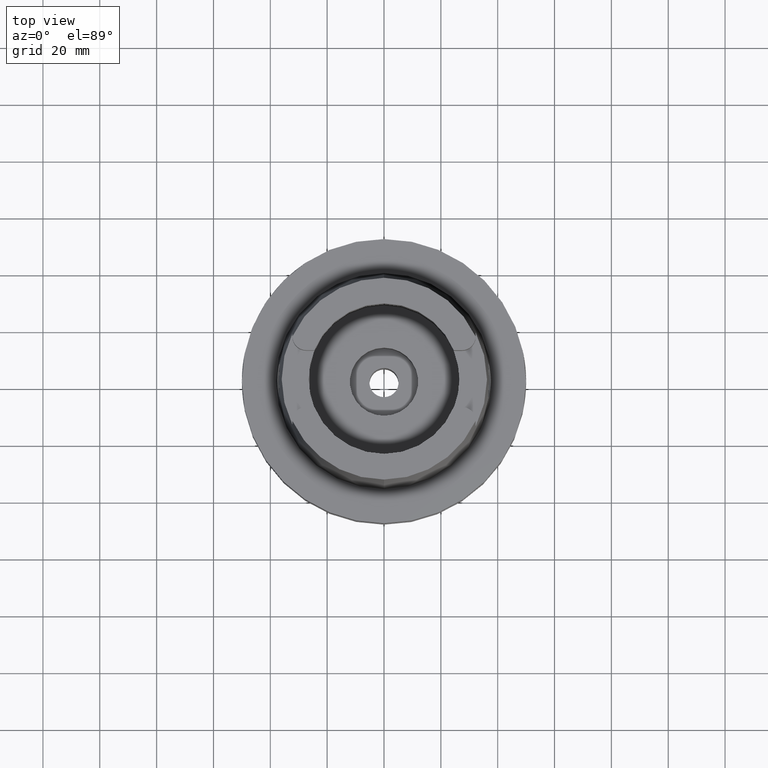
[diagram: clean part render]
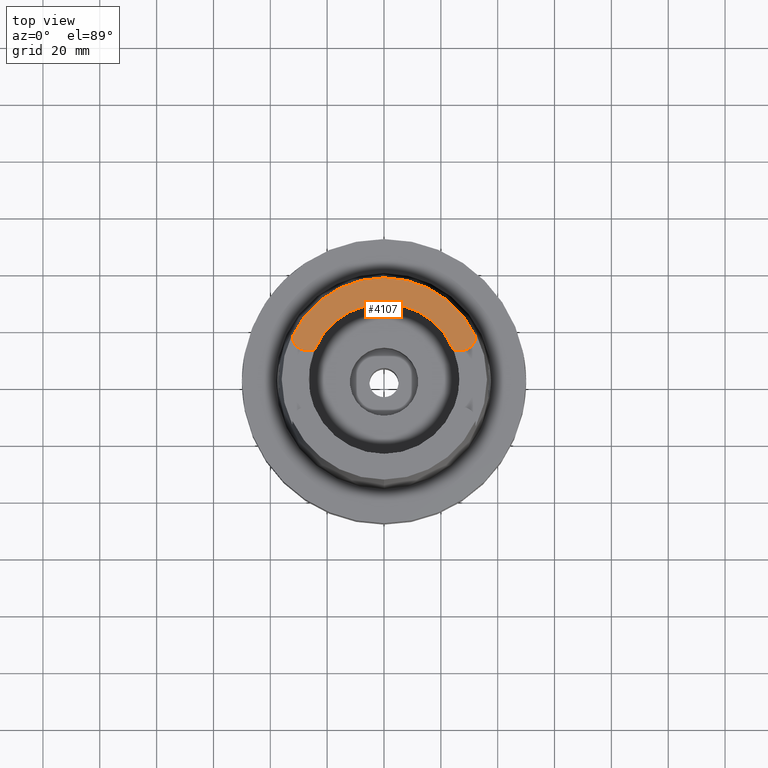
[diagram: same view with one face highlighted and labeled with its STEP entity id]
A machine part, top view. The second image highlights one B-rep face of the part: STEP entity #4107.
In plain terms, the highlighted planar face has unit normal (0, 0, 1).
Its self-contained STEP definition (entity closure, byte-faithful):
#17=CARTESIAN_POINT('',(-2.737E1,1.489E1,5.E1));
#18=DIRECTION('',(0.E0,0.E0,-1.E0));
#19=DIRECTION('',(0.E0,-1.E0,0.E0));
#20=AXIS2_PLACEMENT_3D('',#17,#18,#19);
#26=CARTESIAN_POINT('',(0.E0,0.E0,5.E1));
#27=DIRECTION('',(0.E0,0.E0,-1.E0));
#28=DIRECTION('',(-9.084449337998E-1,4.180045481253E-1,0.E0));
#29=AXIS2_PLACEMENT_3D('',#26,#27,#28);
#34=CARTESIAN_POINT('',(0.E0,0.E0,5.E1));
#35=DIRECTION('',(0.E0,0.E0,-1.E0));
#36=DIRECTION('',(0.E0,1.E0,0.E0));
#37=AXIS2_PLACEMENT_3D('',#34,#35,#36);
#42=CARTESIAN_POINT('',(2.737E1,1.489E1,5.E1));
#43=DIRECTION('',(0.E0,0.E0,-1.E0));
#44=DIRECTION('',(9.999456747286E-1,-1.042341553740E-2,0.E0));
#45=AXIS2_PLACEMENT_3D('',#42,#43,#44);
#50=CARTESIAN_POINT('',(0.E0,0.E0,5.E1));
#51=DIRECTION('',(0.E0,0.E0,1.E0));
#52=DIRECTION('',(9.259134021805E-1,3.777358490566E-1,0.E0));
#53=AXIS2_PLACEMENT_3D('',#50,#51,#52);
#58=CARTESIAN_POINT('',(0.E0,0.E0,5.E1));
#59=DIRECTION('',(0.E0,0.E0,1.E0));
#60=DIRECTION('',(0.E0,1.E0,0.E0));
#61=AXIS2_PLACEMENT_3D('',#58,#59,#60);
#80=DIRECTION('',(1.E0,1.429464217237E-13,0.E0));
#81=VECTOR('',#80,2.833294842218E0);
#82=CARTESIAN_POINT('',(-2.737E1,1.001E1,5.E1));
#83=LINE('',#82,#81);
#3544=DIRECTION('',(1.E0,-1.423194637337E-13,0.E0));
#3545=VECTOR('',#3544,2.833294842218E0);
#3546=CARTESIAN_POINT('',(2.453670515778E1,1.001E1,5.E1));
#3547=LINE('',#3546,#3545);
#3565=CARTESIAN_POINT('',(-2.737E1,1.001E1,5.E1));
#3566=CARTESIAN_POINT('',(-3.224973489268E1,1.483913373218E1,5.E1));
#3567=VERTEX_POINT('',#3565);
#3568=VERTEX_POINT('',#3566);
#3569=CARTESIAN_POINT('',(0.E0,3.549993366992E1,5.E1));
#3570=VERTEX_POINT('',#3569);
#3571=CARTESIAN_POINT('',(3.224973489267E1,1.483913373218E1,5.E1));
#3572=VERTEX_POINT('',#3571);
#3573=CARTESIAN_POINT('',(2.737E1,1.001E1,5.E1));
#3574=VERTEX_POINT('',#3573);
#3575=CARTESIAN_POINT('',(2.453670515778E1,1.001E1,5.E1));
#3576=VERTEX_POINT('',#3575);
#3577=CARTESIAN_POINT('',(0.E0,2.65E1,5.E1));
#3578=VERTEX_POINT('',#3577);
#3579=CARTESIAN_POINT('',(-2.453670515778E1,1.001E1,5.E1));
#3580=VERTEX_POINT('',#3579);
#4084=CARTESIAN_POINT('',(0.E0,0.E0,5.E1));
#4085=DIRECTION('',(0.E0,0.E0,1.E0));
#4086=DIRECTION('',(0.E0,1.E0,0.E0));
#4087=AXIS2_PLACEMENT_3D('',#4084,#4085,#4086);
#4088=PLANE('',#4087);
#4090=ORIENTED_EDGE('',*,*,#4089,.T.);
#4092=ORIENTED_EDGE('',*,*,#4091,.T.);
#4094=ORIENTED_EDGE('',*,*,#4093,.T.);
#4096=ORIENTED_EDGE('',*,*,#4095,.T.);
#4098=ORIENTED_EDGE('',*,*,#4097,.F.);
#4100=ORIENTED_EDGE('',*,*,#4099,.T.);
#4102=ORIENTED_EDGE('',*,*,#4101,.T.);
#4104=ORIENTED_EDGE('',*,*,#4103,.F.);
#4105=EDGE_LOOP('',(#4090,#4092,#4094,#4096,#4098,#4100,#4102,#4104));
#4106=FACE_OUTER_BOUND('',#4105,.F.);
#21=CIRCLE('',#20,4.88E0);
#30=CIRCLE('',#29,3.549993366992E1);
#38=CIRCLE('',#37,3.549993366992E1);
#46=CIRCLE('',#45,4.88E0);
#54=CIRCLE('',#53,2.65E1);
#62=CIRCLE('',#61,2.65E1);
#4089=EDGE_CURVE('',#3567,#3568,#21,.T.);
#4091=EDGE_CURVE('',#3568,#3570,#30,.T.);
#4093=EDGE_CURVE('',#3570,#3572,#38,.T.);
#4095=EDGE_CURVE('',#3572,#3574,#46,.T.);
#4097=EDGE_CURVE('',#3576,#3574,#3547,.T.);
#4099=EDGE_CURVE('',#3576,#3578,#54,.T.);
#4101=EDGE_CURVE('',#3578,#3580,#62,.T.);
#4103=EDGE_CURVE('',#3567,#3580,#83,.T.);
#4107=ADVANCED_FACE('',(#4106),#4088,.T.);